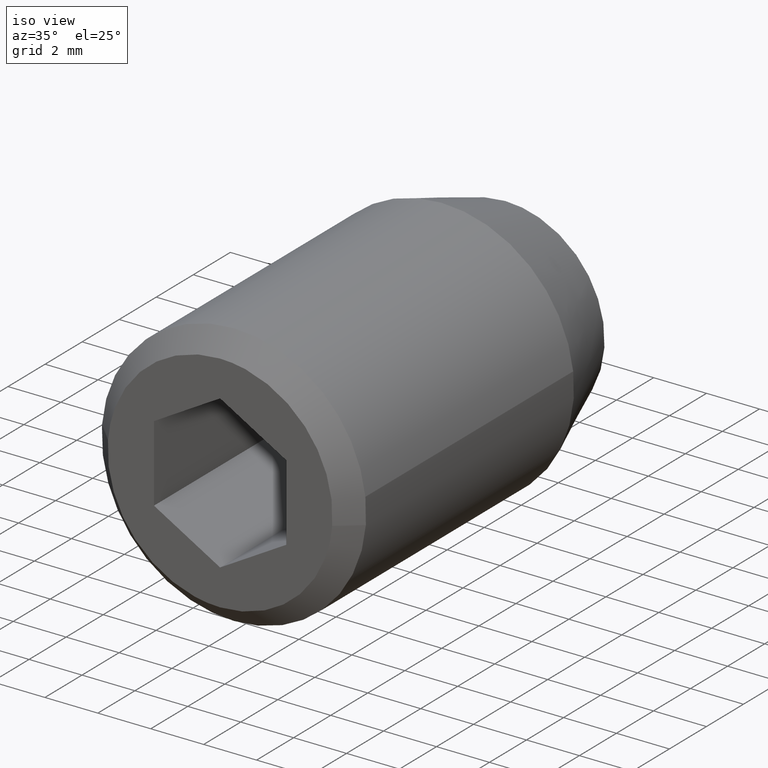
[diagram: clean part render]
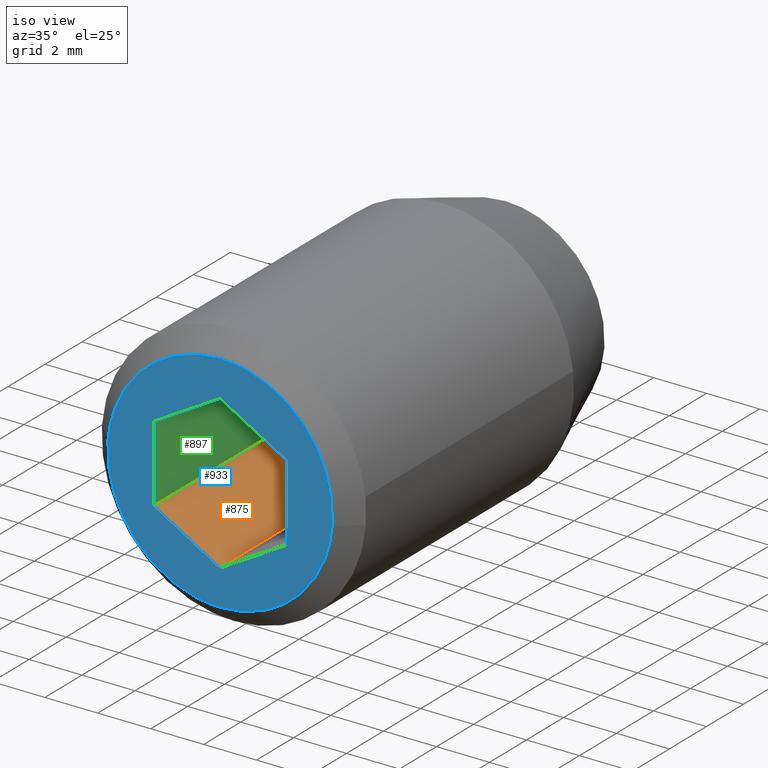
[diagram: same view with three faces highlighted in distinct colors, each labeled with its STEP entity id]
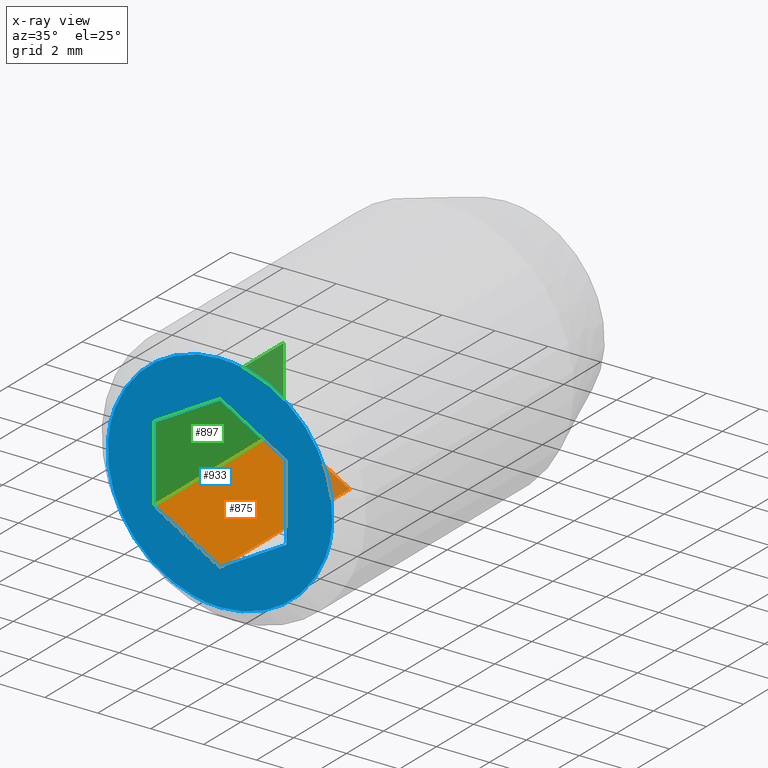
[diagram: x-ray of the same camera — body ghosted, the three highlighted faces saturated]
A machine part, iso view with three faces highlighted in distinct colors.
The next image is the same camera in x-ray (body ghosted, the three faces saturated) — at least one of them is partly hidden behind the body in this view.
Their STEP definitions:

[orange] entity #875 — the highlighted face is a freeform B-spline surface patch.
#746=CARTESIAN_POINT('',(-2.500000000000000,-8.400000000000000,-1.443376000000000));
#747=VERTEX_POINT('',#746);
#753=CARTESIAN_POINT('',(0.0,-8.400000000000000,-2.886751000000000));
#754=VERTEX_POINT('',#753);
#755=CARTESIAN_POINT('',(-2.500000000000000,-8.400000000000000,-1.443376000000000));
#756=CARTESIAN_POINT('',(0.0,-8.400000000000000,-2.886751000000000));
#757=QUASI_UNIFORM_CURVE('',1,(#755,#756),.UNSPECIFIED.,.F.,.U.);
#758=EDGE_CURVE('',#747,#754,#757,.T.);
#837=CARTESIAN_POINT('',(0.0,-15.400000000000000,-2.886751000000000));
#838=VERTEX_POINT('',#837);
#846=CARTESIAN_POINT('',(0.0,-8.400000000000000,-2.886751000000000));
#847=CARTESIAN_POINT('',(0.0,-15.400000000000000,-2.886751000000000));
#848=QUASI_UNIFORM_CURVE('',1,(#846,#847),.UNSPECIFIED.,.F.,.U.);
#849=EDGE_CURVE('',#754,#838,#848,.T.);
#854=CARTESIAN_POINT('',(0.124874971686296,-15.749649592166691,-2.958847564903100));
#855=CARTESIAN_POINT('',(-2.624875061093270,-15.749649592166691,-1.371279383477800));
#856=CARTESIAN_POINT('',(0.124874971686296,-8.050349844569416,-2.958847564903100));
#857=CARTESIAN_POINT('',(-2.624875061093270,-8.050349844569416,-1.371279383477800));
#858=B_SPLINE_SURFACE_WITH_KNOTS('',1,1,((#854,#856),(#855,#857)),.UNSPECIFIED.,.F.,.F.,.U.,(2,2),(2,2),(0.0,3.175137473156912),(0.0,7.699299747597278),.UNSPECIFIED.);
#859=CARTESIAN_POINT('',(-2.500000000000000,-15.400000000000000,-1.443376000000000));
#860=VERTEX_POINT('',#859);
#861=CARTESIAN_POINT('',(-2.500000000000000,-15.400000000000000,-1.443376000000000));
#862=CARTESIAN_POINT('',(0.0,-15.400000000000000,-2.886751000000000));
#863=QUASI_UNIFORM_CURVE('',1,(#861,#862),.UNSPECIFIED.,.F.,.U.);
#864=EDGE_CURVE('',#860,#838,#863,.T.);
#865=ORIENTED_EDGE('',*,*,#864,.T.);
#866=ORIENTED_EDGE('',*,*,#849,.F.);
#867=ORIENTED_EDGE('',*,*,#758,.F.);
#868=CARTESIAN_POINT('',(-2.500000000000000,-8.400000000000000,-1.443376000000000));
#869=CARTESIAN_POINT('',(-2.500000000000000,-15.400000000000000,-1.443376000000000));
#870=QUASI_UNIFORM_CURVE('',1,(#868,#869),.UNSPECIFIED.,.F.,.U.);
#871=EDGE_CURVE('',#747,#860,#870,.T.);
#872=ORIENTED_EDGE('',*,*,#871,.T.);
#873=EDGE_LOOP('',(#865,#866,#867,#872));
#874=FACE_OUTER_BOUND('',#873,.T.);
#875=ADVANCED_FACE('',(#874),#858,.F.);

[blue] entity #933 — the highlighted face is a freeform B-spline surface patch.
#615=CARTESIAN_POINT('',(4.236898668366878,-15.399999999997281,-0.333451156864203));
#616=VERTEX_POINT('',#615);
#622=CARTESIAN_POINT('',(0.0,-15.400000000000000,-4.250000000000001));
#623=VERTEX_POINT('',#622);
#624=CARTESIAN_POINT('',(0.0,-15.400000000000000,-4.250000000000001));
#625=CARTESIAN_POINT('',(3.928659589508974,-15.400000000000009,-4.250000000000001));
#626=CARTESIAN_POINT('',(4.236898668366879,-15.399999999997283,-0.333451156864203));
#634=(BOUNDED_CURVE()B_SPLINE_CURVE(2,(#624,#625,#626),.UNSPECIFIED.,.F.,.U.)B_SPLINE_CURVE_WITH_KNOTS((3,3),(0.0,0.236331300631096),.UNSPECIFIED.)CURVE()GEOMETRIC_REPRESENTATION_ITEM()RATIONAL_B_SPLINE_CURVE((1.0,0.723120658607154,0.969723356168329))REPRESENTATION_ITEM(''));
#635=EDGE_CURVE('',#623,#616,#634,.T.);
#637=CARTESIAN_POINT('',(-4.236898668366878,-15.399999999997281,0.333451156864201));
#638=VERTEX_POINT('',#637);
#639=CARTESIAN_POINT('',(-4.236898668366879,-15.399999999997283,0.333451156864201));
#640=CARTESIAN_POINT('',(-4.250000000000000,-15.400000000000000,0.166982954803337));
#641=CARTESIAN_POINT('',(-4.250000000000000,-15.400000000000000,-7.898711E-016));
#642=CARTESIAN_POINT('',(-4.249999999999999,-15.399999999999997,-4.250000000000002));
#643=CARTESIAN_POINT('',(0.0,-15.400000000000000,-4.250000000000001));
#651=(BOUNDED_CURVE()B_SPLINE_CURVE(2,(#639,#640,#641,#642,#643),.UNSPECIFIED.,.F.,.U.)B_SPLINE_CURVE_WITH_KNOTS((3,2,3),(0.736331300631096,0.750000000000000,1.0),.UNSPECIFIED.)CURVE()GEOMETRIC_REPRESENTATION_ITEM()RATIONAL_B_SPLINE_CURVE((0.969723356168329,0.983986122579393,1.0,0.707106781186548,1.0))REPRESENTATION_ITEM(''));
#652=EDGE_CURVE('',#638,#623,#651,.T.);
#686=CARTESIAN_POINT('',(0.0,-15.400000000000000,4.249999999999999));
#687=VERTEX_POINT('',#686);
#688=CARTESIAN_POINT('',(0.0,-15.400000000000000,4.249999999999999));
#689=CARTESIAN_POINT('',(-3.928659589508976,-15.399999999999997,4.249999999999999));
#690=CARTESIAN_POINT('',(-4.236898668366878,-15.399999999997288,0.333451156864201));
#698=(BOUNDED_CURVE()B_SPLINE_CURVE(2,(#688,#689,#690),.UNSPECIFIED.,.F.,.U.)B_SPLINE_CURVE_WITH_KNOTS((3,3),(0.500000000000000,0.736331300631096),.UNSPECIFIED.)CURVE()GEOMETRIC_REPRESENTATION_ITEM()RATIONAL_B_SPLINE_CURVE((1.0,0.723120658607154,0.969723356168329))REPRESENTATION_ITEM(''));
#699=EDGE_CURVE('',#687,#638,#698,.T.);
#701=CARTESIAN_POINT('',(4.236898668366878,-15.399999999997286,-0.333451156864203));
#702=CARTESIAN_POINT('',(4.250000000000000,-15.400000000000002,-0.166982954803340));
#703=CARTESIAN_POINT('',(4.250000000000000,-15.400000000000000,-7.898711E-016));
#704=CARTESIAN_POINT('',(4.249999999999999,-15.399999999999997,4.249999999999998));
#705=CARTESIAN_POINT('',(0.0,-15.400000000000000,4.249999999999999));
#713=(BOUNDED_CURVE()B_SPLINE_CURVE(2,(#701,#702,#703,#704,#705),.UNSPECIFIED.,.F.,.U.)B_SPLINE_CURVE_WITH_KNOTS((3,2,3),(0.236331300631096,0.250000000000000,0.500000000000000),.UNSPECIFIED.)CURVE()GEOMETRIC_REPRESENTATION_ITEM()RATIONAL_B_SPLINE_CURVE((0.969723356168329,0.983986122579393,1.0,0.707106781186548,1.0))REPRESENTATION_ITEM(''));
#714=EDGE_CURVE('',#616,#687,#713,.T.);
#787=CARTESIAN_POINT('',(2.500000000000000,-15.400000000000000,1.443376000000000));
#788=VERTEX_POINT('',#787);
#789=CARTESIAN_POINT('',(0.0,-15.400000000000000,2.886751000000000));
#790=VERTEX_POINT('',#789);
#791=CARTESIAN_POINT('',(2.500000000000000,-15.400000000000000,1.443376000000000));
#792=CARTESIAN_POINT('',(0.0,-15.400000000000000,2.886751000000000));
#793=QUASI_UNIFORM_CURVE('',1,(#791,#792),.UNSPECIFIED.,.F.,.U.);
#794=EDGE_CURVE('',#788,#790,#793,.T.);
#815=CARTESIAN_POINT('',(2.500000000000000,-15.400000000000000,-1.443376000000000));
#816=VERTEX_POINT('',#815);
#817=CARTESIAN_POINT('',(2.500000000000000,-15.400000000000000,-1.443376000000000));
#818=CARTESIAN_POINT('',(2.500000000000000,-15.400000000000000,1.443376000000000));
#819=QUASI_UNIFORM_CURVE('',1,(#817,#818),.UNSPECIFIED.,.F.,.U.);
#820=EDGE_CURVE('',#816,#788,#819,.T.);
#837=CARTESIAN_POINT('',(0.0,-15.400000000000000,-2.886751000000000));
#838=VERTEX_POINT('',#837);
#839=CARTESIAN_POINT('',(0.0,-15.400000000000000,-2.886751000000000));
#840=CARTESIAN_POINT('',(2.500000000000000,-15.400000000000000,-1.443376000000000));
#841=QUASI_UNIFORM_CURVE('',1,(#839,#840),.UNSPECIFIED.,.F.,.U.);
#842=EDGE_CURVE('',#838,#816,#841,.T.);
#859=CARTESIAN_POINT('',(-2.500000000000000,-15.400000000000000,-1.443376000000000));
#860=VERTEX_POINT('',#859);
#861=CARTESIAN_POINT('',(-2.500000000000000,-15.400000000000000,-1.443376000000000));
#862=CARTESIAN_POINT('',(0.0,-15.400000000000000,-2.886751000000000));
#863=QUASI_UNIFORM_CURVE('',1,(#861,#862),.UNSPECIFIED.,.F.,.U.);
#864=EDGE_CURVE('',#860,#838,#863,.T.);
#881=CARTESIAN_POINT('',(-2.500000000000000,-15.400000000000000,1.443376000000000));
#882=VERTEX_POINT('',#881);
#883=CARTESIAN_POINT('',(-2.500000000000000,-15.400000000000000,1.443376000000000));
#884=CARTESIAN_POINT('',(-2.500000000000000,-15.400000000000000,-1.443376000000000));
#885=QUASI_UNIFORM_CURVE('',1,(#883,#884),.UNSPECIFIED.,.F.,.U.);
#886=EDGE_CURVE('',#882,#860,#885,.T.);
#903=CARTESIAN_POINT('',(0.0,-15.400000000000000,2.886751000000000));
#904=CARTESIAN_POINT('',(-2.500000000000000,-15.400000000000000,1.443376000000000));
#905=QUASI_UNIFORM_CURVE('',1,(#903,#904),.UNSPECIFIED.,.F.,.U.);
#906=EDGE_CURVE('',#790,#882,#905,.T.);
#914=CARTESIAN_POINT('',(-4.673277429345395,-15.400000000000000,4.674574983525349));
#915=CARTESIAN_POINT('',(-4.673277429345395,-15.400000000000000,-4.674575211513118));
#916=CARTESIAN_POINT('',(4.673277277353551,-15.400000000000000,4.674574983525349));
#917=CARTESIAN_POINT('',(4.673277277353551,-15.400000000000000,-4.674575211513118));
#918=B_SPLINE_SURFACE_WITH_KNOTS('',1,1,((#914,#916),(#915,#917)),.UNSPECIFIED.,.F.,.F.,.U.,(2,2),(2,2),(0.0,9.349150195038467),(0.0,9.346554706698946),.UNSPECIFIED.);
#919=ORIENTED_EDGE('',*,*,#635,.T.);
#920=ORIENTED_EDGE('',*,*,#714,.T.);
#921=ORIENTED_EDGE('',*,*,#699,.T.);
#922=ORIENTED_EDGE('',*,*,#652,.T.);
#923=EDGE_LOOP('',(#919,#920,#921,#922));
#924=FACE_OUTER_BOUND('',#923,.T.);
#925=ORIENTED_EDGE('',*,*,#906,.F.);
#926=ORIENTED_EDGE('',*,*,#794,.F.);
#927=ORIENTED_EDGE('',*,*,#820,.F.);
#928=ORIENTED_EDGE('',*,*,#842,.F.);
#929=ORIENTED_EDGE('',*,*,#864,.F.);
#930=ORIENTED_EDGE('',*,*,#886,.F.);
#931=EDGE_LOOP('',(#925,#926,#927,#928,#929,#930));
#932=FACE_BOUND('',#931,.T.);
#933=ADVANCED_FACE('',(#924,#932),#918,.T.);

[green] entity #897 — the highlighted face is a freeform B-spline surface patch.
#739=CARTESIAN_POINT('',(-2.500000000000000,-8.400000000000000,1.443376000000000));
#740=VERTEX_POINT('',#739);
#746=CARTESIAN_POINT('',(-2.500000000000000,-8.400000000000000,-1.443376000000000));
#747=VERTEX_POINT('',#746);
#748=CARTESIAN_POINT('',(-2.500000000000000,-8.400000000000000,1.443376000000000));
#749=CARTESIAN_POINT('',(-2.500000000000000,-8.400000000000000,-1.443376000000000));
#750=QUASI_UNIFORM_CURVE('',1,(#748,#749),.UNSPECIFIED.,.F.,.U.);
#751=EDGE_CURVE('',#740,#747,#750,.T.);
#859=CARTESIAN_POINT('',(-2.500000000000000,-15.400000000000000,-1.443376000000000));
#860=VERTEX_POINT('',#859);
#868=CARTESIAN_POINT('',(-2.500000000000000,-8.400000000000000,-1.443376000000000));
#869=CARTESIAN_POINT('',(-2.500000000000000,-15.400000000000000,-1.443376000000000));
#870=QUASI_UNIFORM_CURVE('',1,(#868,#869),.UNSPECIFIED.,.F.,.U.);
#871=EDGE_CURVE('',#747,#860,#870,.T.);
#876=CARTESIAN_POINT('',(-2.500000000000000,-15.749649592166691,-1.587569192293884));
#877=CARTESIAN_POINT('',(-2.500000000000000,-15.749649592166691,1.587569114865162));
#878=CARTESIAN_POINT('',(-2.500000000000000,-8.050349844569414,-1.587569192293884));
#879=CARTESIAN_POINT('',(-2.500000000000000,-8.050349844569414,1.587569114865162));
#880=B_SPLINE_SURFACE_WITH_KNOTS('',1,1,((#876,#878),(#877,#879)),.UNSPECIFIED.,.F.,.F.,.U.,(2,2),(2,2),(0.0,3.175138307159045),(0.0,7.699299747597280),.UNSPECIFIED.);
#881=CARTESIAN_POINT('',(-2.500000000000000,-15.400000000000000,1.443376000000000));
#882=VERTEX_POINT('',#881);
#883=CARTESIAN_POINT('',(-2.500000000000000,-15.400000000000000,1.443376000000000));
#884=CARTESIAN_POINT('',(-2.500000000000000,-15.400000000000000,-1.443376000000000));
#885=QUASI_UNIFORM_CURVE('',1,(#883,#884),.UNSPECIFIED.,.F.,.U.);
#886=EDGE_CURVE('',#882,#860,#885,.T.);
#887=ORIENTED_EDGE('',*,*,#886,.T.);
#888=ORIENTED_EDGE('',*,*,#871,.F.);
#889=ORIENTED_EDGE('',*,*,#751,.F.);
#890=CARTESIAN_POINT('',(-2.500000000000000,-8.400000000000000,1.443376000000000));
#891=CARTESIAN_POINT('',(-2.500000000000000,-15.400000000000000,1.443376000000000));
#892=QUASI_UNIFORM_CURVE('',1,(#890,#891),.UNSPECIFIED.,.F.,.U.);
#893=EDGE_CURVE('',#740,#882,#892,.T.);
#894=ORIENTED_EDGE('',*,*,#893,.T.);
#895=EDGE_LOOP('',(#887,#888,#889,#894));
#896=FACE_OUTER_BOUND('',#895,.T.);
#897=ADVANCED_FACE('',(#896),#880,.F.);